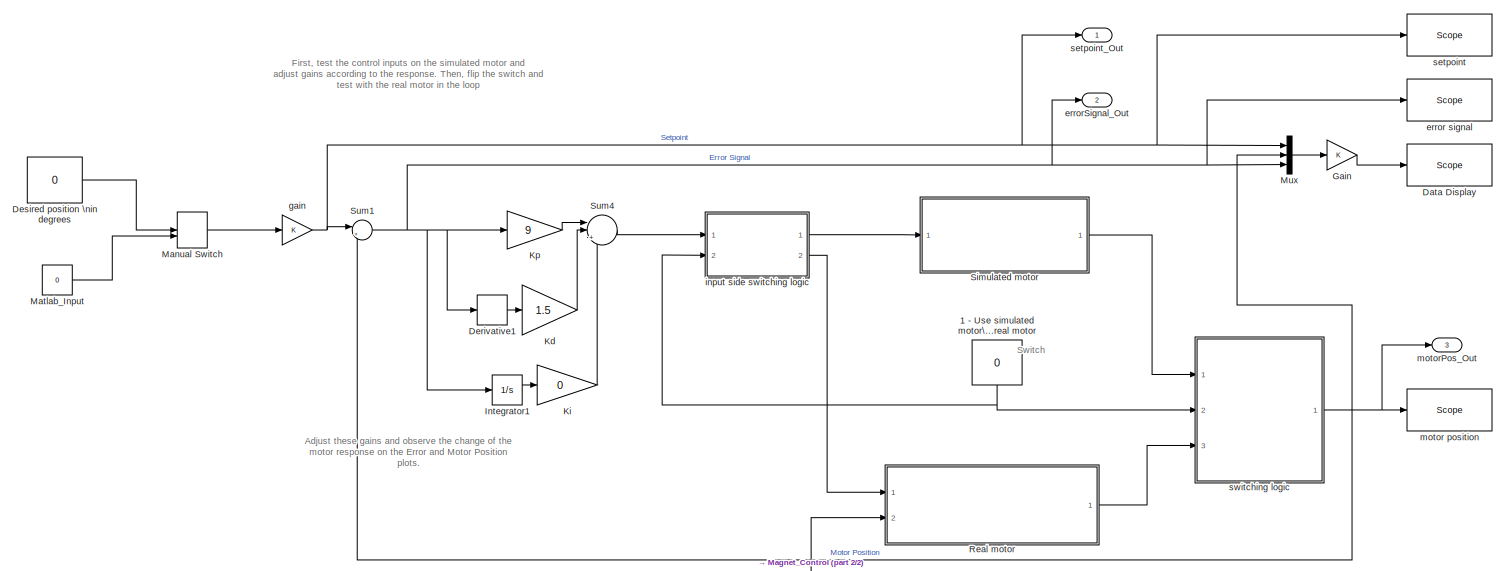
[diagram: root canvas - part 1/2, full width, top band]
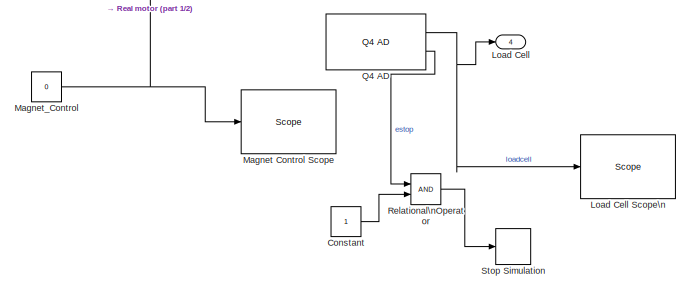
[diagram: root canvas - part 2/2, bottom center region]
MODEL dc_motor_encoder_hardware_simulated
KIND model
BLOCK [Constant] 1 - Use simulated motor\n0 - Use real motor
  SID = 1
  Value = 0
BLOCK [Constant] Constant
  SID = 110
BLOCK [Reference] Data Display  REF=slrtlib/Displays and\nLogging/Scope 
  Ports = [1]
  SID = 53
  SourceBlock = slrtlib/Displays and\nLogging/Scope
  SourceProductBaseCode = XP
  SourceProductName = Simulink Real-Time
  SourceType = xpcscopeblock
  autorestart = off
  autostart = on
  dynamicfilemode = off
  filename = data.dat
  formatstr = 'Setpoint        %3.2f,Motor Position  %3.2f,Error Signal    %3.2f'
  grid = on
  interleave = 10
  maxwritefilesize = 512*1024^2
  mode = Lazy
  noprepostsamples = 0
  nosamples = 200
  scopeno = 3
  scopetype = Target
  triggerlevel = 0.0
  triggermode = FreeRun
  triggersample = 0
  triggerscope = 1
  triggersignal = 1
  triggerslope = Either
  trigsignalfromport = off
  viewmode = Numerical
  writesize = 512
  ylimits = [0,170]
BLOCK [Derivative] Derivative1
  SID = 2
BLOCK [Constant] Desired position \nin degrees
  SID = 3
  Value = 0
BLOCK [Gain] Gain
  OutDataTypeStr = Inherit: Inherit via internal rule
  ParamDataTypeStr = Inherit: Inherit via internal rule
  SID = 55
  SaturateOnIntegerOverflow = off
BLOCK [Integrator] Integrator1
  Ports = [1, 1]
  SID = 4
BLOCK [Gain] Kd
  Gain = 1.5
  OutDataTypeStr = Inherit: Inherit via internal rule
  ParamDataTypeStr = Inherit: Inherit via internal rule
  SID = 5
  SaturateOnIntegerOverflow = off
BLOCK [Gain] Ki
  Gain = 0
  OutDataTypeStr = Inherit: Inherit via internal rule
  ParamDataTypeStr = Inherit: Inherit via internal rule
  SID = 6
  SaturateOnIntegerOverflow = off
BLOCK [Gain] Kp
  Gain = 9
  OutDataTypeStr = Inherit: Inherit via internal rule
  ParamDataTypeStr = Inherit: Inherit via internal rule
  SID = 7
  SaturateOnIntegerOverflow = off
BLOCK [Outport] Load Cell
  IconDisplay = Port number
  Port = 4
  SID = 106
BLOCK [Reference] Load Cell Scope\n  REF=slrtlib/Displays and\nLogging/Scope 
  Ports = [1]
  SID = 108
  SourceBlock = slrtlib/Displays and\nLogging/Scope
  SourceProductBaseCode = XP
  SourceProductName = Simulink Real-Time
  SourceType = xpcscopeblock
  autorestart = off
  autostart = on
  dynamicfilemode = off
  filename = data.dat
  formatstr = '%15.6f'
  grid = on
  interleave = 1
  maxwritefilesize = 512*1024^2
  mode = Lazy
  noprepostsamples = 0
  nosamples = 200
  scopeno = 5
  scopetype = Target
  triggerlevel = 0.0
  triggermode = FreeRun
  triggersample = 0
  triggerscope = 1
  triggersignal = 1
  triggerslope = Either
  trigsignalfromport = off
  viewmode = Graphical redraw
  writesize = 512
  ylimits = [0,2]
BLOCK [Reference] Magnet Control Scope  REF=slrtlib/Displays and\nLogging/Scope 
  Ports = [1]
  SID = 94
  SourceBlock = slrtlib/Displays and\nLogging/Scope
  SourceProductBaseCode = XP
  SourceProductName = Simulink Real-Time
  SourceType = xpcscopeblock
  autorestart = off
  autostart = on
  dynamicfilemode = off
  filename = data.dat
  formatstr = '%15.6f'
  grid = on
  interleave = 1
  maxwritefilesize = 512*1024^2
  mode = Lazy
  noprepostsamples = 0
  nosamples = 200
  scopeno = 4
  scopetype = Target
  triggerlevel = 0.0
  triggermode = FreeRun
  triggersample = 0
  triggerscope = 1
  triggersignal = 1
  triggerslope = Either
  trigsignalfromport = off
  viewmode = Graphical redraw
  writesize = 512
  ylimits = [0,2]
BLOCK [Constant] Magnet_Control
  SID = 95
  Value = 0
BLOCK [ManualSwitch] Manual Switch
  CurrentSetting = 0
  SID = 85
BLOCK [Constant] Matlab_Input
  SID = 87
  Value = 0
BLOCK [Mux] Mux
  DisplayOption = bar
  Inputs = 3
  Ports = [3, 1]
  SID = 54
BLOCK [Reference] Q4 AD  REF=xpcquanserlib/A//D/Q4 AD
  Ports = [0, 2]
  SID = 105
  SourceBlock = xpcquanserlib/A//D/Q4 AD
  SourceProductBaseCode = XP
  SourceProductName = Simulink Real-Time
  SourceType = quanser_q4_ad
  channel = [2 4]
  sampleTime = -1
  slot = -1
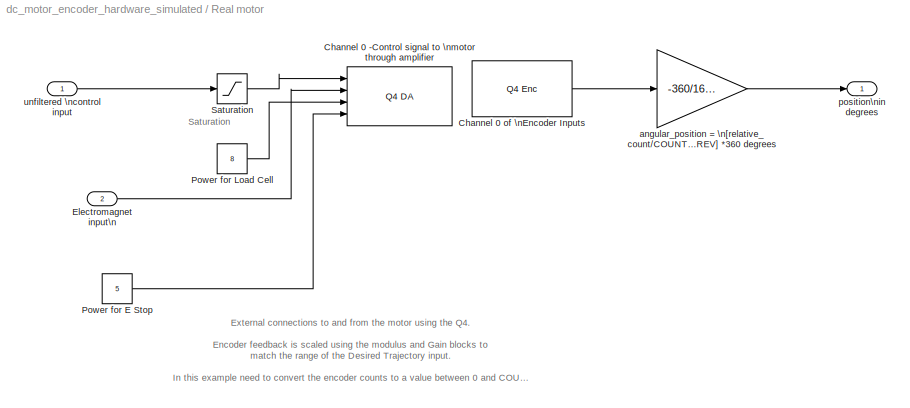
BLOCK [SubSystem] Real motor
  Ports = [2, 1]
  RequestExecContextInheritance = off
  SID = 8
  Variant = off
BLOCK [Reference] Real motor/Channel 0 -Control signal to \nmotor through amplifier   REF=xpcquanserlib/D//A/Q4 DA 
  Ports = [4]
  SID = 10
  SourceBlock = xpcquanserlib/D//A/Q4 DA
  SourceProductBaseCode = XP
  SourceProductName = Simulink Real-Time
  SourceType = quanser_q4_da
  channel = [1 2 3 4]
  initValue = [0]
  range = [-10]
  reset = [1]
  sampleTime = .001
  simul = off
  slot = -1
BLOCK [Reference] Real motor/Channel 0 of \nEncoder Inputs   REF=xpcquanserlib/Incremental\nEncoder/Q4 Enc 
  Ports = [0, 1]
  SID = 11
  SourceBlock = xpcquanserlib/Incremental\nEncoder/Q4 Enc
  SourceProductBaseCode = XP
  SourceProductName = Simulink Real-Time
  SourceType = quanser_q4_enc
  channel = [4]
  indexPolarity = [0]
  initialCount = [0]
  mode = [0]
  prescale = [1]
  preserveCounts = [0]
  quadrature = [4]
  sampleTime = .001
  slot = -1
  synchronousIndex = [0]
BLOCK [Inport] Real motor/Electromagnet input\n
  IconDisplay = Port number
  Port = 2
  SID = 97
BLOCK [Constant] Real motor/Power for E Stop
  SID = 113
  Value = 5
BLOCK [Constant] Real motor/Power for Load Cell
  SID = 109
  Value = 8
BLOCK [Saturate] Real motor/Saturation
  InputPortMap = u0
  LowerLimit = -10
  Ports = [1, 1]
  SID = 12
  UpperLimit = 10
BLOCK [Gain] Real motor/angular_position = \n[relative_count//COUNTS_PER_REV] *360 degrees
  Gain = -360/1600
  OutDataTypeStr = Inherit: Inherit via internal rule
  ParamDataTypeStr = Inherit: Inherit via internal rule
  SID = 14
  SaturateOnIntegerOverflow = off
BLOCK [Outport] Real motor/position\nin degrees
  IconDisplay = Port number
  SID = 15
BLOCK [Inport] Real motor/unfiltered \ncontrol input
  IconDisplay = Port number
  SID = 9
BLOCK [RelationalOperator] Relational\nOperator
  InputSameDT = off
  OutDataTypeStr = boolean
  Ports = [2, 1]
  SID = 111
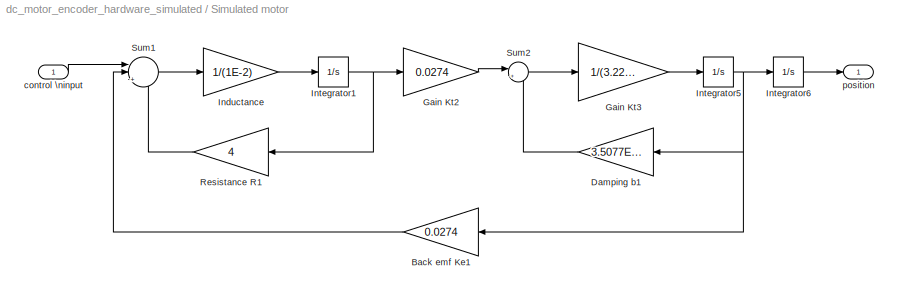
BLOCK [SubSystem] Simulated motor
  Ports = [1, 1]
  RequestExecContextInheritance = off
  SID = 16
  Variant = off
BLOCK [Gain] Simulated motor/Back emf Ke1
  Gain = 0.0274
  OutDataTypeStr = Inherit: Inherit via internal rule
  ParamDataTypeStr = Inherit: Inherit via internal rule
  SID = 65
  SaturateOnIntegerOverflow = off
BLOCK [Gain] Simulated motor/Damping b1
  Gain = 3.5077E-6
  OutDataTypeStr = Inherit: Inherit via internal rule
  ParamDataTypeStr = Inherit: Inherit via internal rule
  SID = 66
  SaturateOnIntegerOverflow = off
BLOCK [Gain] Simulated motor/Gain Kt2
  Gain = 0.0274
  OutDataTypeStr = Inherit: Inherit via internal rule
  ParamDataTypeStr = Inherit: Inherit via internal rule
  SID = 67
  SaturateOnIntegerOverflow = off
BLOCK [Gain] Simulated motor/Gain Kt3
  Gain = 1/(3.2284E-6)
  OutDataTypeStr = Inherit: Inherit via internal rule
  ParamDataTypeStr = Inherit: Inherit via internal rule
  SID = 68
  SaturateOnIntegerOverflow = off
BLOCK [Gain] Simulated motor/Inductance
  Gain = 1/(1E-2)
  OutDataTypeStr = Inherit: Inherit via internal rule
  ParamDataTypeStr = Inherit: Inherit via internal rule
  SID = 69
  SaturateOnIntegerOverflow = off
BLOCK [Integrator] Simulated motor/Integrator1
  Ports = [1, 1]
  SID = 70
BLOCK [Integrator] Simulated motor/Integrator5
  Ports = [1, 1]
  SID = 71
BLOCK [Integrator] Simulated motor/Integrator6
  Ports = [1, 1]
  SID = 72
BLOCK [Gain] Simulated motor/Resistance R1
  Gain = 4
  OutDataTypeStr = Inherit: Inherit via internal rule
  ParamDataTypeStr = Inherit: Inherit via internal rule
  SID = 73
  SaturateOnIntegerOverflow = off
BLOCK [Sum] Simulated motor/Sum1
  IconShape = round
  InputSameDT = off
  Inputs = ||+--
  OutDataTypeStr = Inherit: Inherit via internal rule
  Ports = [3, 1]
  SID = 74
  SaturateOnIntegerOverflow = off
BLOCK [Sum] Simulated motor/Sum2
  IconShape = round
  InputSameDT = off
  Inputs = |+-
  OutDataTypeStr = Inherit: Inherit via internal rule
  Ports = [2, 1]
  SID = 75
  SaturateOnIntegerOverflow = off
BLOCK [Inport] Simulated motor/control \ninput
  IconDisplay = Port number
  SID = 17
BLOCK [Outport] Simulated motor/position
  IconDisplay = Port number
  SID = 29
BLOCK [Stop] Stop Simulation
  SID = 112
BLOCK [Sum] Sum1
  IconShape = round
  InputSameDT = off
  Inputs = |+-
  OutDataTypeStr = Inherit: Inherit via internal rule
  Ports = [2, 1]
  SID = 30
  SaturateOnIntegerOverflow = off
BLOCK [Sum] Sum4
  IconShape = round
  InputSameDT = off
  Inputs = ||+++
  OutDataTypeStr = Inherit: Inherit via internal rule
  Ports = [3, 1]
  SID = 31
  SaturateOnIntegerOverflow = off
BLOCK [Reference] error signal  REF=slrtlib/Displays and\nLogging/Scope 
  Ports = [1]
  SID = 32
  SourceBlock = slrtlib/Displays and\nLogging/Scope
  SourceProductBaseCode = XP
  SourceProductName = Simulink Real-Time
  SourceType = xpcscopeblock
  autorestart = off
  autostart = on
  dynamicfilemode = off
  filename = data.dat
  formatstr = '%15.6f'
  grid = on
  interleave = 10
  maxwritefilesize = 512*1024^2
  mode = Lazy
  noprepostsamples = 0
  nosamples = 500
  scopeno = 2
  scopetype = Target
  triggerlevel = 0.0
  triggermode = FreeRun
  triggersample = 0
  triggerscope = 1
  triggersignal = 1
  triggerslope = Either
  trigsignalfromport = off
  viewmode = Graphical rolling
  writesize = 512
  ylimits = [-180,180]
BLOCK [Outport] errorSignal_Out
  IconDisplay = Port number
  Port = 2
  SID = 78
BLOCK [Gain] gain
  OutDataTypeStr = Inherit: Inherit via internal rule
  ParamDataTypeStr = Inherit: Inherit via internal rule
  SID = 33
  SaturateOnIntegerOverflow = off
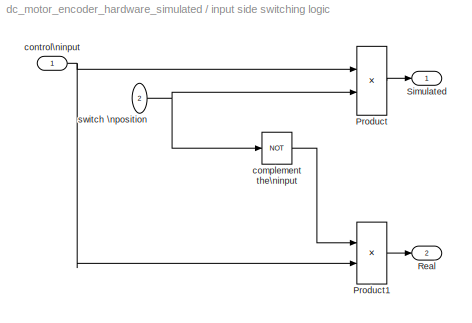
BLOCK [SubSystem] input side switching logic
  Ports = [2, 2]
  RequestExecContextInheritance = off
  SID = 34
  Variant = off
BLOCK [Product] input side switching logic/Product
  InputSameDT = off
  OutDataTypeStr = Inherit: Inherit via internal rule
  Ports = [2, 1]
  SID = 37
  SaturateOnIntegerOverflow = off
BLOCK [Product] input side switching logic/Product1
  InputSameDT = off
  OutDataTypeStr = Inherit: Inherit via internal rule
  Ports = [2, 1]
  SID = 38
  SaturateOnIntegerOverflow = off
BLOCK [Outport] input side switching logic/Real
  IconDisplay = Port number
  Port = 2
  SID = 41
BLOCK [Outport] input side switching logic/Simulated
  IconDisplay = Port number
  SID = 40
BLOCK [Logic] input side switching logic/complement the\ninput
  AllPortsSameDT = off
  Operator = NOT
  OutDataTypeStr = boolean
  Ports = [1, 1]
  SID = 39
BLOCK [Inport] input side switching logic/control\ninput
  IconDisplay = Port number
  SID = 35
BLOCK [Inport] input side switching logic/switch \nposition
  IconDisplay = Port number
  Port = 2
  SID = 36
BLOCK [Reference] motor position  REF=slrtlib/Displays and\nLogging/Scope 
  Ports = [1]
  SID = 42
  SourceBlock = slrtlib/Displays and\nLogging/Scope
  SourceProductBaseCode = XP
  SourceProductName = Simulink Real-Time
  SourceType = xpcscopeblock
  autorestart = off
  autostart = on
  dynamicfilemode = off
  filename = data.dat
  formatstr = '%15.6f'
  grid = on
  interleave = 10
  maxwritefilesize = 512*1024^2
  mode = Lazy
  noprepostsamples = 0
  nosamples = 500
  scopeno = 7
  scopetype = Target
  triggerlevel = 0.0
  triggermode = FreeRun
  triggersample = 0
  triggerscope = 1
  triggersignal = 1
  triggerslope = Either
  trigsignalfromport = off
  viewmode = Graphical rolling
  writesize = 512
  ylimits = [-180,180]
BLOCK [Outport] motorPos_Out
  IconDisplay = Port number
  Port = 3
  SID = 79
  SignalName = name
BLOCK [Reference] setpoint  REF=slrtlib/Displays and\nLogging/Scope 
  Ports = [1]
  SID = 43
  SourceBlock = slrtlib/Displays and\nLogging/Scope
  SourceProductBaseCode = XP
  SourceProductName = Simulink Real-Time
  SourceType = xpcscopeblock
  autorestart = off
  autostart = on
  dynamicfilemode = off
  filename = data.dat
  formatstr = '%15.6f'
  grid = on
  interleave = 10
  maxwritefilesize = 512*1024^2
  mode = Lazy
  noprepostsamples = 0
  nosamples = 500
  scopeno = 1
  scopetype = Target
  triggerlevel = 0.0
  triggermode = FreeRun
  triggersample = 0
  triggerscope = 1
  triggersignal = 1
  triggerslope = Either
  trigsignalfromport = off
  viewmode = Graphical rolling
  writesize = 512
  ylimits = [-180,180]
BLOCK [Outport] setpoint_Out
  IconDisplay = Port number
  SID = 77
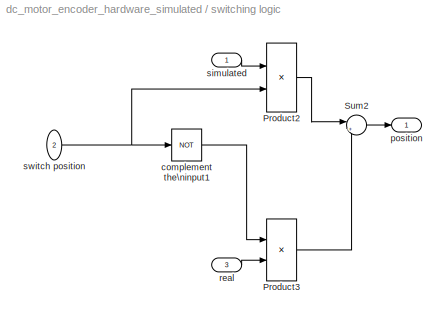
BLOCK [SubSystem] switching logic
  Ports = [3, 1]
  RequestExecContextInheritance = off
  SID = 44
  Variant = off
BLOCK [Product] switching logic/Product2
  InputSameDT = off
  OutDataTypeStr = Inherit: Inherit via internal rule
  Ports = [2, 1]
  SID = 48
  SaturateOnIntegerOverflow = off
BLOCK [Product] switching logic/Product3
  InputSameDT = off
  OutDataTypeStr = Inherit: Inherit via internal rule
  Ports = [2, 1]
  SID = 49
  SaturateOnIntegerOverflow = off
BLOCK [Sum] switching logic/Sum2
  IconShape = round
  InputSameDT = off
  Inputs = |++
  OutDataTypeStr = Inherit: Inherit via internal rule
  Ports = [2, 1]
  SID = 50
  SaturateOnIntegerOverflow = off
BLOCK [Logic] switching logic/complement the\ninput1
  AllPortsSameDT = off
  Operator = NOT
  OutDataTypeStr = boolean
  Ports = [1, 1]
  SID = 51
BLOCK [Outport] switching logic/position
  IconDisplay = Port number
  SID = 52
BLOCK [Inport] switching logic/real
  IconDisplay = Port number
  Port = 3
  SID = 47
BLOCK [Inport] switching logic/simulated
  IconDisplay = Port number
  SID = 45
BLOCK [Inport] switching logic/switch position
  IconDisplay = Port number
  Port = 2
  SID = 46
ANNOTATION (root): Adjust these gains and observe the change of the \nmotor response on the Error and Motor Position\nplots.
ANNOTATION (root): First, test the control inputs on the simulated motor and \nadjust gains according to the response. Then, flip the switch and\ntest with the real motor in the loop
ANNOTATION (root): Switch
ANNOTATION Real motor: External connections to and from the motor using the Q4. \n\nEncoder feedback is scaled using the modulus and Gain blocks to\nmatch the range of the Desired Trajectory input.\n\nIn this example need to convert the encoder counts to a value between 0 and COUNTS_PER_REV. \nFurther, the count obtained for that revolution needs to be scaled to an angle feedback (between\n0 and 360 degrees), which is t...<+29ch>
ANNOTATION Real motor: Saturation
NET 1 - Use simulated motor\n0 - Use real motor:1 -> input side switching logic:2, switching logic:2
LINE Constant:1 -> Relational\nOperator:2
LINE Derivative1:1 -> Kd:1
LINE Desired position \nin degrees:1 -> Manual Switch:1
LINE Gain:1 -> Data Display:1
LINE Integrator1:1 -> Ki:1
LINE Kd:1 -> Sum4:2
LINE Ki:1 -> Sum4:3
LINE Kp:1 -> Sum4:1
NET Magnet_Control:1 -> Magnet Control Scope:1, Real motor:2
LINE Manual Switch:1 -> gain:1
LINE Matlab_Input:1 -> Manual Switch:2
LINE Mux:1 -> Gain:1
NET Q4 AD:1 -> Load Cell Scope\n:1, Load Cell:1
LINE Q4 AD:2 -> Relational\nOperator:1
LINE Real motor/Channel 0 of \nEncoder Inputs :1 -> Real motor/angular_position = \n[relative_count//COUNTS_PER_REV] *360 degrees:1
LINE Real motor/Electromagnet input\n:1 -> Real motor/Channel 0 -Control signal to \nmotor through amplifier :2
LINE Real motor/Power for E Stop:1 -> Real motor/Channel 0 -Control signal to \nmotor through amplifier :4
LINE Real motor/Power for Load Cell:1 -> Real motor/Channel 0 -Control signal to \nmotor through amplifier :3
LINE Real motor/Saturation:1 -> Real motor/Channel 0 -Control signal to \nmotor through amplifier :1
LINE Real motor/angular_position = \n[relative_count//COUNTS_PER_REV] *360 degrees:1 -> Real motor/position\nin degrees:1
LINE Real motor/unfiltered \ncontrol input:1 -> Real motor/Saturation:1
LINE Real motor:1 -> switching logic:3
LINE Relational\nOperator:1 -> Stop Simulation:1
LINE Simulated motor/Back emf Ke1:1 -> Simulated motor/Sum1:2
LINE Simulated motor/Damping b1:1 -> Simulated motor/Sum2:2
LINE Simulated motor/Gain Kt2:1 -> Simulated motor/Sum2:1
LINE Simulated motor/Gain Kt3:1 -> Simulated motor/Integrator5:1
LINE Simulated motor/Inductance:1 -> Simulated motor/Integrator1:1
NET Simulated motor/Integrator1:1 -> Simulated motor/Gain Kt2:1, Simulated motor/Resistance R1:1
NET Simulated motor/Integrator5:1 -> Simulated motor/Back emf Ke1:1, Simulated motor/Damping b1:1, Simulated motor/Integrator6:1
LINE Simulated motor/Integrator6:1 -> Simulated motor/position:1
LINE Simulated motor/Resistance R1:1 -> Simulated motor/Sum1:3
LINE Simulated motor/Sum1:1 -> Simulated motor/Inductance:1
LINE Simulated motor/Sum2:1 -> Simulated motor/Gain Kt3:1
LINE Simulated motor/control \ninput:1 -> Simulated motor/Sum1:1
LINE Simulated motor:1 -> switching logic:1
NET Sum1:1 -> Derivative1:1, Integrator1:1, Kp:1, Mux:3, error signal:1, errorSignal_Out:1
LINE Sum4:1 -> input side switching logic:1
NET gain:1 -> Mux:1, Sum1:1, setpoint:1, setpoint_Out:1
LINE input side switching logic/Product1:1 -> input side switching logic/Real:1
LINE input side switching logic/Product:1 -> input side switching logic/Simulated:1
LINE input side switching logic/complement the\ninput:1 -> input side switching logic/Product1:1
NET input side switching logic/control\ninput:1 -> input side switching logic/Product1:2, input side switching logic/Product:1
NET input side switching logic/switch \nposition:1 -> input side switching logic/Product:2, input side switching logic/complement the\ninput:1
LINE input side switching logic:1 -> Simulated motor:1
LINE input side switching logic:2 -> Real motor:1
LINE switching logic/Product2:1 -> switching logic/Sum2:1
LINE switching logic/Product3:1 -> switching logic/Sum2:2
LINE switching logic/Sum2:1 -> switching logic/position:1
LINE switching logic/complement the\ninput1:1 -> switching logic/Product3:1
LINE switching logic/real:1 -> switching logic/Product3:2
LINE switching logic/simulated:1 -> switching logic/Product2:1
NET switching logic/switch position:1 -> switching logic/Product2:2, switching logic/complement the\ninput1:1
NET switching logic:1 -> Mux:2, Sum1:2, motor position:1, motorPos_Out:1
note: NET lines group one-source signal fan-out (src -> all destinations, sorted); 1:1 wires keep LINE
